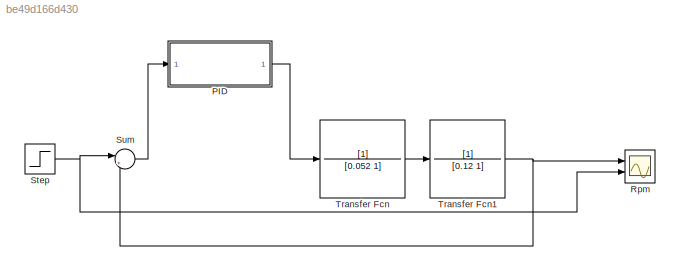
MODEL slx_be49d166d430
KIND model
CONFIG AbsTol = auto
CONFIG EnableMultiTasking = off
CONFIG FixedStep = 0.01
CONFIG MaxStep = auto
CONFIG MinStep = auto
CONFIG RelTol = 1e-3
CONFIG SampleTimeConstraint = Unconstrained
CONFIG SolverName = FixedStepAuto
CONFIG StartTime = 0.0
CONFIG StopTime = 5
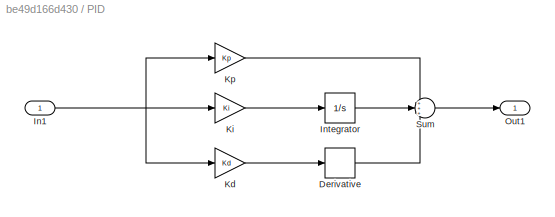
BLOCK [SubSystem] PID
  Ports = [1, 1]
  RequestExecContextInheritance = off
BLOCK [Derivative] PID/Derivative
BLOCK [Inport] PID/In1
BLOCK [Integrator] PID/Integrator
  Ports = [1, 1]
BLOCK [Gain] PID/Kd
  Gain = Kd
BLOCK [Gain] PID/Ki
  Gain = Ki
BLOCK [Gain] PID/Kp 
  Gain = Kp
BLOCK [Outport] PID/Out1
  VectorParamsAs1DForOutWhenUnconnected = off
BLOCK [Sum] PID/Sum
  Inputs = +++
  Ports = [3, 1]
BLOCK [Scope] Rpm 
  Floating = off
  NumInputPorts = 2
  Ports = [2]
  ScopeSpecificationString = Simulink.scopes.TimeScopeBlockCfg('CurrentConfiguration', extmgr.ConfigurationSet(extmgr.Configuration('Core','General UI',true),extmgr.Configuration('Core','Source UI',true),extmgr.Configuration('Sources','WiredSimulink',true,'DataLogging',true,'DataLoggingSaveFormat','StructureWithTime'),extmgr.Configuration('Visuals','Time Domain',true,'SerializedDisplays',{struct('MinYLimReal','-386.00659','Ma...<+1520ch>
BLOCK [Step] Step
  After = 2000
  SampleTime = 0
BLOCK [Sum] Sum
  Inputs = |+-
  Ports = [2, 1]
BLOCK [TransferFcn] Transfer Fcn
  Denominator = [0.052 1]
BLOCK [TransferFcn] Transfer Fcn1
  Denominator = [0.12 1]
LINE PID/Derivative:1 -> PID/Sum:3
NET PID/In1:1 -> PID/Kd:1, PID/Ki:1, PID/Kp :1
LINE PID/Integrator:1 -> PID/Sum:2
LINE PID/Kd:1 -> PID/Derivative:1
LINE PID/Ki:1 -> PID/Integrator:1
LINE PID/Kp :1 -> PID/Sum:1
LINE PID/Sum:1 -> PID/Out1:1
LINE PID:1 -> Transfer Fcn:1
NET Step:1 -> Rpm :2, Sum:1
LINE Sum:1 -> PID:1
NET Transfer Fcn1:1 -> Rpm :1, Sum:2
LINE Transfer Fcn:1 -> Transfer Fcn1:1
note: NET lines group one-source signal fan-out (src -> all destinations, sorted); 1:1 wires keep LINE
